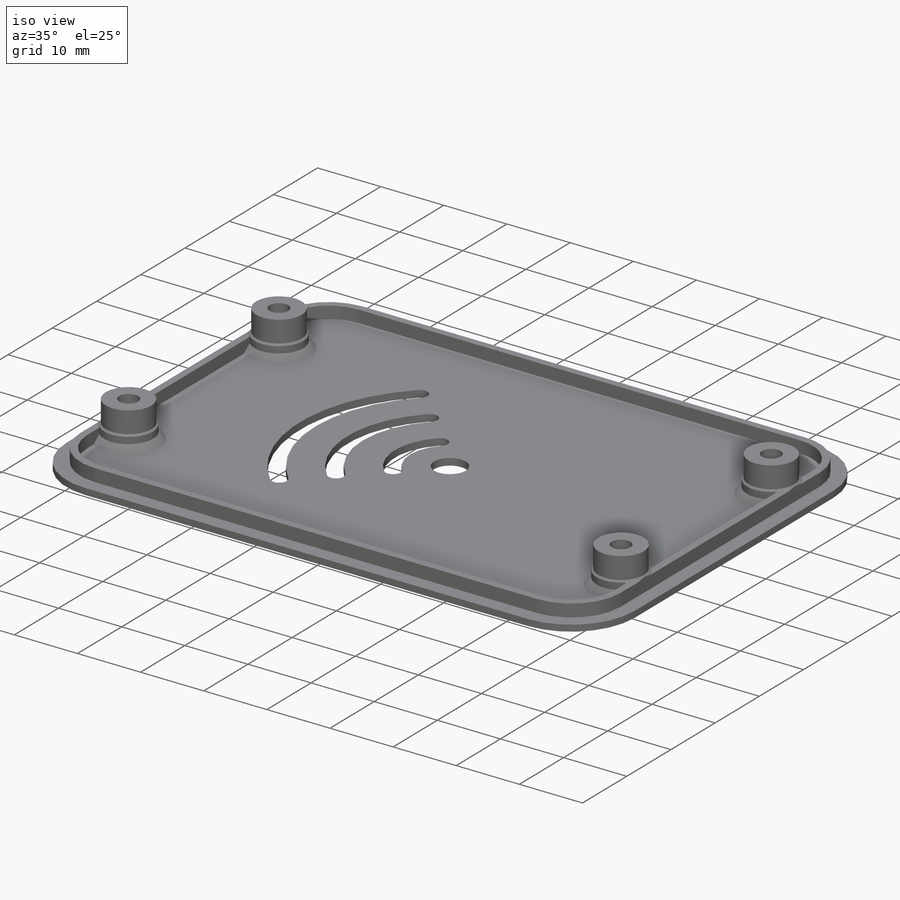
[diagram: iso view]
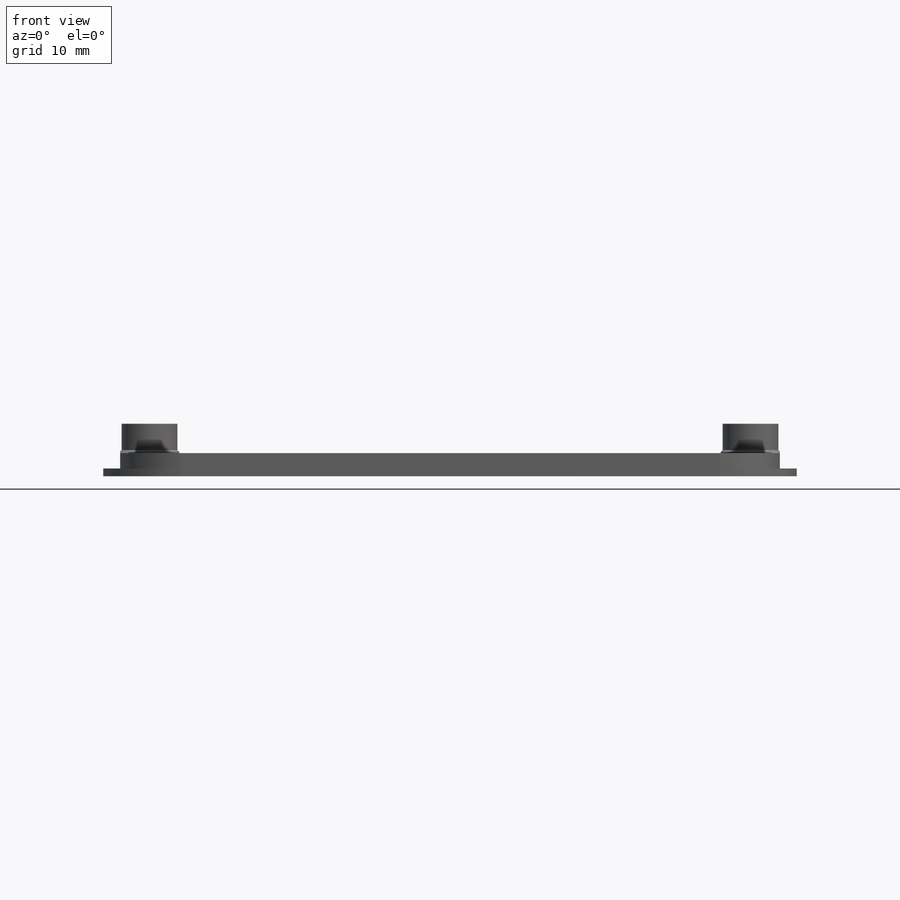
[diagram: front view]
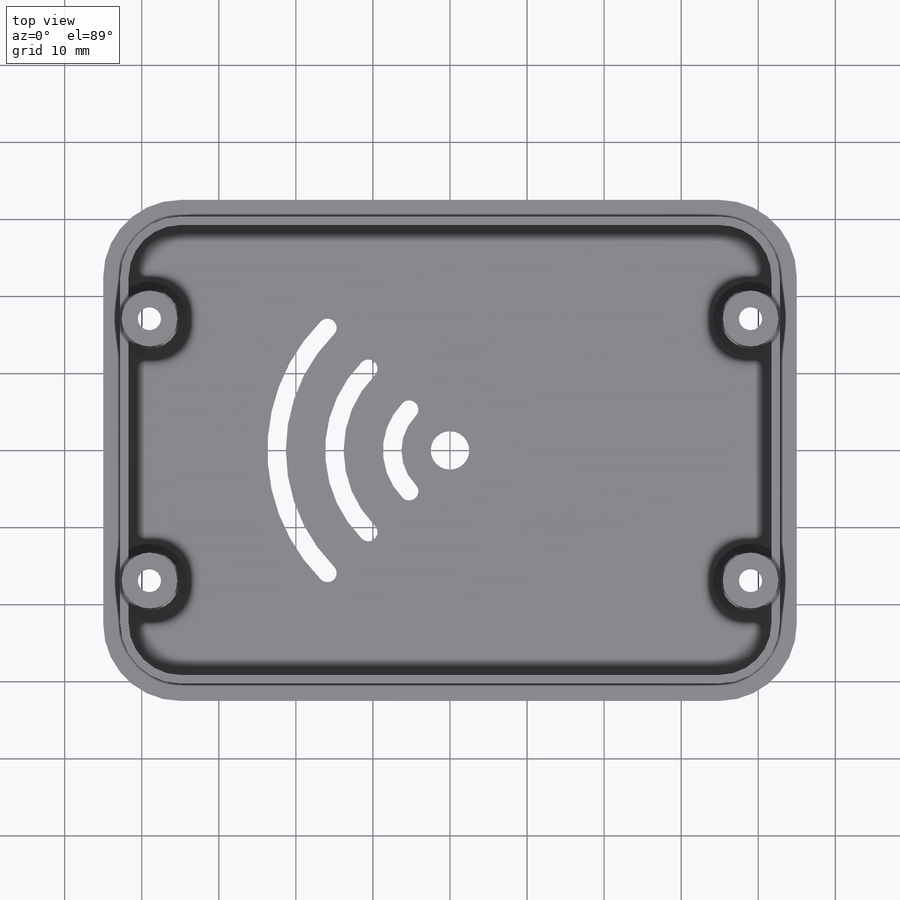
[diagram: top view]
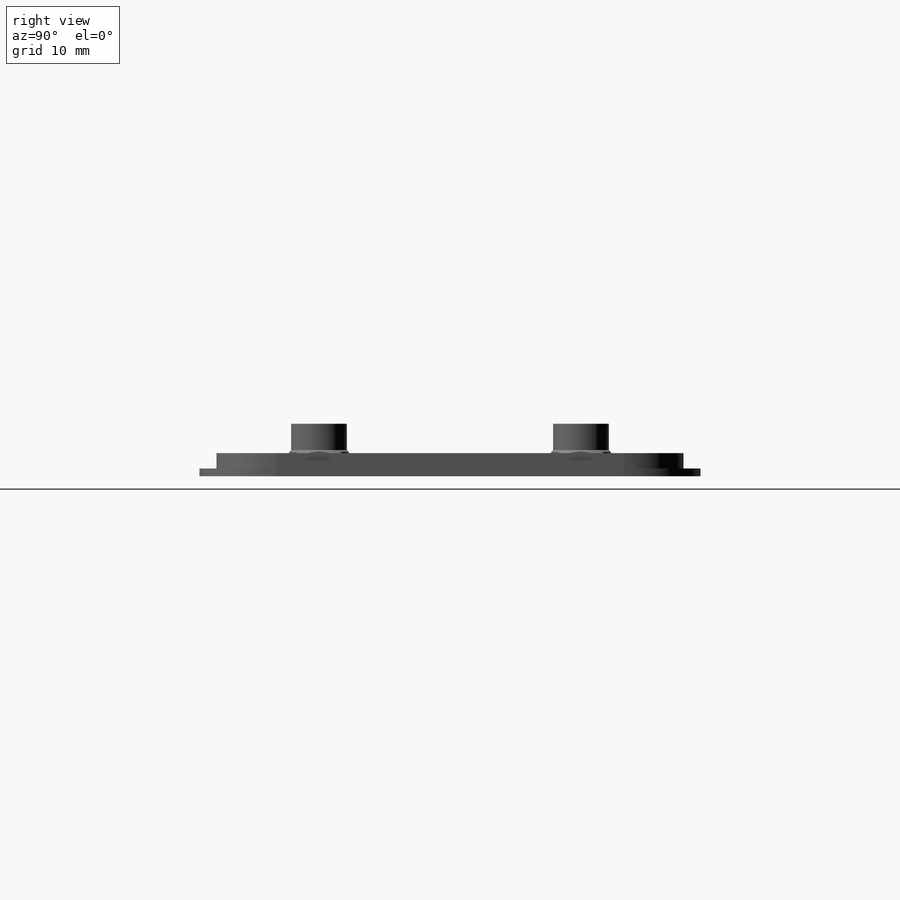
[diagram: right view]
SOLIDWORKS PART (.sldprt)
format: sldprt  version: not decoded by parser v0  size: 1,612,288 bytes
history: native  units: mm
features: sketch x17, cut_extrude x8, extrude x7, fillet x3, chamfer x3, plane x2, shell x2, material x1 (+13 scaffold rows collapsed)
feature tree (56):
  scaffold x13  (default folders/planes/origin — collapsed)
  material  "Material <not specified>"
  plane  "Plane1"  Offset=10mm
  plane  "Plane2"  Offset=8mm
  sketch  "Sketch3"  dims[c1.D1=~62.583728mm c1.D2=~89.481554mm c2.D1=65.0mm c2.D2=90.0mm]
  extrude  "Boss-Extrude1"  Depth=30mm
  fillet  "Fillet1"  Radius=10mm
  sketch  "Sketch5"  dims[c1.D3=10.0mm c1.D4=10.0mm c1.D5=20.0mm c1.D6=20.0mm c1.D2=101.6mm c2.D5=~3.345583mm c2.D1=0.0mm]
  extrude  "Boss-Extrude2"  Depth=2mm
  shell  "Shell2"  Thickness=2mm
  sketch  "Sketch6"  dims[D1=8.0mm D2=8.0mm D3=8.0mm D4=8.0mm]
  extrude  "Boss-Extrude3"  [1 undecoded]
  sketch  "Sketch7"  dims[c1.D1=~2.314707mm c1.D5=8.0mm c1.D6=8.0mm c1.D7=8.0mm c1.D8=8.0mm c2.D1=17.0mm c2.D2=17.0mm c2.D3=39.0mm c2.D4=39.0mm]
  extrude  "Boss-Extrude4"  Depth=22mm
  sketch  "Sketch8"  dims[D1=0.2mm]
  extrude  "Boss-Extrude5"  Depth=2mm
  sketch  "Sketch9"
  extrude  "Boss-Extrude7"  Depth=1mm
  sketch  "Sketch10"  dims[D1=0.2mm D2=0.2mm D3=0.2mm D4=0.2mm]
  extrude  "Boss-Extrude9"  Depth=3.8mm
  sketch  "Sketch12"  dims[D1=2.65mm D2=2.65mm D3=2.65mm D4=2.65mm]
  cut_extrude  "Cut-Extrude1"  Depth=15mm
  sketch  "Sketch13"  dims[D1=5.55mm D2=5.55mm D3=5.55mm D4=5.55mm]
  cut_extrude  "Cut-Extrude2"  Depth=5mm
  sketch  "Sketch14"  dims[D1=1.8mm D2=1.8mm D3=1.8mm D4=1.8mm]
  cut_extrude  "Cut-Extrude3"  Depth=7mm
  shell  "Shell5"  Thickness=1.1mm
  sketch  "Sketch15"  dims[D1=6.0mm D2=6.0mm]
  cut_extrude  "Cut-Extrude4"  Depth=10mm
  sketch  "Sketch16"  dims[D1=2.675mm D5=3.0mm D6=1.0mm D7=5.0mm]
  sketch  "Sketch18"  dims[D1=~0.023488mm D5=3.0mm D6=1.0mm D7=5.0mm]
  sketch  "Sketch19"  dims[D1=3.0mm D2=3.0mm D3=3.0mm D4=3.0mm]
  cut_extrude  "Cut-Extrude5"  Depth=10mm
  chamfer  "Chamfer1"  Distance=0.4mm Angle=45deg
  sketch  "Sketch20"  dims[D1=5.0mm]
  cut_extrude  "Cut-Extrude6"  Depth=10mm
  sketch  "Sketch21"  dims[c1.D5=15.0mm c1.D6=30.0mm c1.D7=45.0mm c1.D8=1.2mm c1.D9=1.2mm c1.D10=1.2mm c1.D1=~17.276612mm c2.D1=45.0deg c2.D2=~28.283807mm c3.D2=45.0deg c3.D3=30.0mm c3.D4=30.0mm]
  cut_extrude  "Cut-Extrude7"  Depth=10mm
  sketch  "Sketch22"  dims[c1.D1=~8.308616mm c1.D2=~11.479009mm c2.D1=9.0mm c2.D2=12.0mm c2.D3=12.0mm c2.D4=~0.593005mm]
  cut_extrude  "Cut-Extrude8"  [1 undecoded]
  fillet  "Fillet2"  Radius=1mm
  fillet  "Fillet3"  Radius=1mm
  chamfer  "Chamfer2"  Distance=1mm Angle=45deg
  chamfer  "Chamfer3"  Distance=0.4mm Angle=45deg
decode coverage: 37 of 40 modeling features carry decoded parameters
note: ~ marks probable driven/reference dimensions
note: 2 parameter values undecoded
note: suppression state not decoded; provenance and decode notes live in map.json
